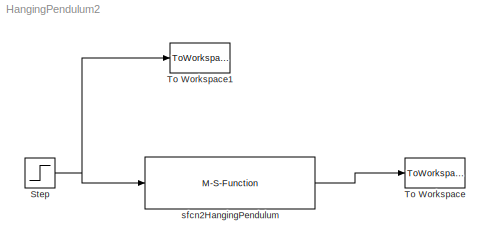
MODEL HangingPendulum2
KIND model
BLOCK [Step] Step
  After = Final_value
  Before = Initial_value
  SID = 4
  SampleTime = Sample_time
  Time = Step_time
BLOCK [ToWorkspace] To Workspace
  MaxDataPoints = inf
  Ports = [1]
  SID = 1
  SampleTime = -1
  VariableName = y
BLOCK [ToWorkspace] To Workspace1
  MaxDataPoints = inf
  Ports = [1]
  SID = 2
  SampleTime = -1
  VariableName = u
BLOCK [M-S-Function] sfcn2HangingPendulum
  FunctionName = sfcn2_HangingPendulum
  Parameters = m, lc, b, Jc, g
  Ports = [1, 1]
  SID = 3
NET Step:1 -> To Workspace1:1, sfcn2HangingPendulum:1
LINE sfcn2HangingPendulum:1 -> To Workspace:1
note: NET lines group one-source signal fan-out (src -> all destinations, sorted); 1:1 wires keep LINE
